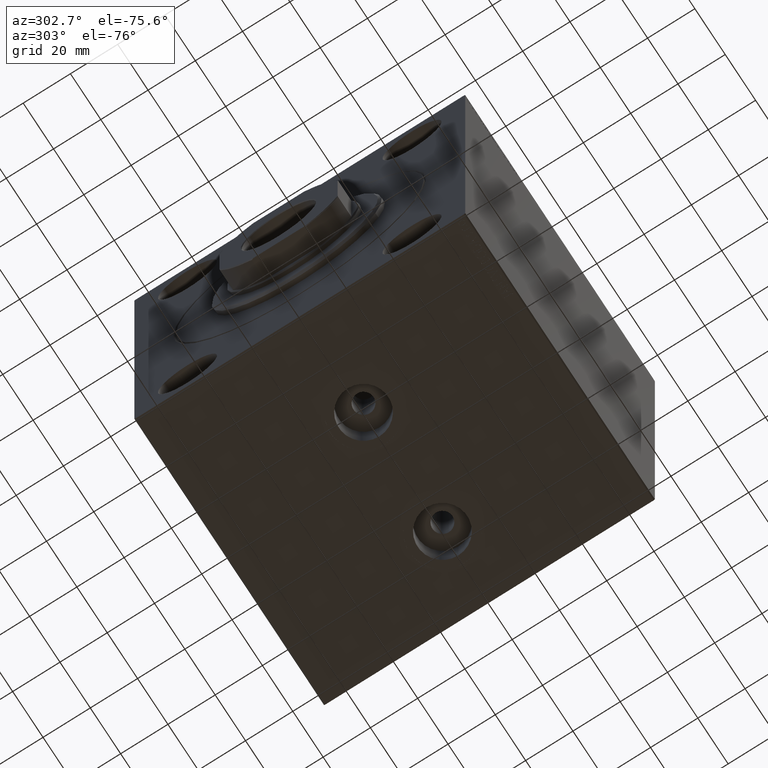
[diagram: clean part render]
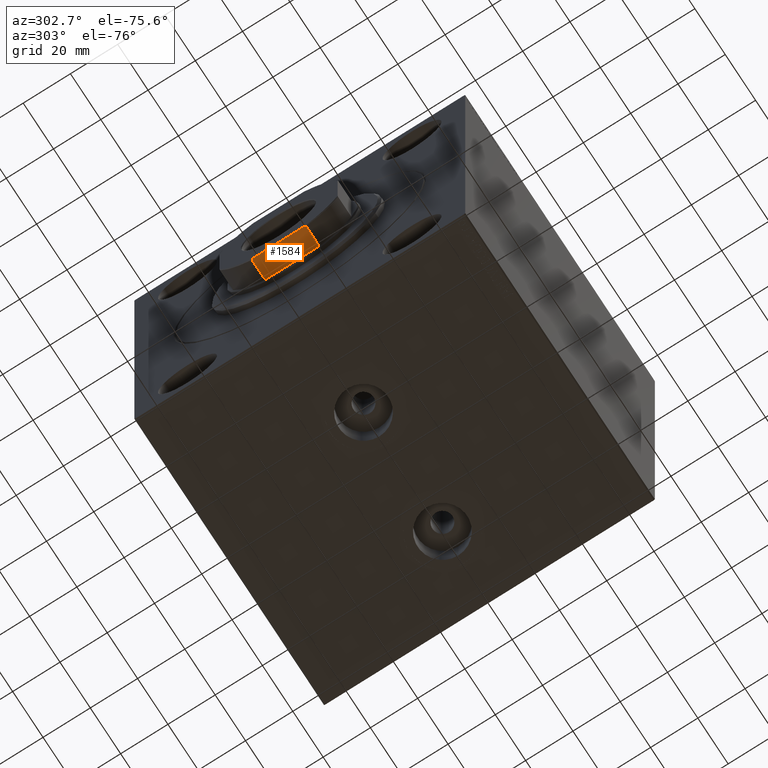
[diagram: same view with one face highlighted and labeled with its STEP entity id]
A machine part, auxiliary view. The second image highlights one B-rep face of the part: STEP entity #1584.
In plain terms, the highlighted planar face has unit normal (0, 0, 1).
Its self-contained STEP definition (entity closure, byte-faithful):
#1584 = ADVANCED_FACE ( 'NONE', ( #18318 ), #11416, .F. ) ;
#1937 = VECTOR ( 'NONE', #7106, 1000.000000000000000 ) ;
#2865 = CARTESIAN_POINT ( 'NONE',  ( -25.00000000000000000, -11.45643923738959558, -0.001000000000001000089 ) ) ;
#3346 = CARTESIAN_POINT ( 'NONE',  ( -24.99999999999999645, -10.71634265969507460, 64.99999999999998579 ) ) ;
#3613 = EDGE_CURVE ( 'NONE', #30370, #25159, #39963, .T. ) ;
#4506 = VECTOR ( 'NONE', #42685, 1000.000000000000000 ) ;
#5489 = CARTESIAN_POINT ( 'NONE',  ( -25.00000000000000000, 11.21071381544323664, 64.80236866784036920 ) ) ;
#7106 = DIRECTION ( 'NONE',  ( 2.081668171172168513E-16, -1.000000000000000000, 0.000000000000000000 ) ) ;
#7162 = AXIS2_PLACEMENT_3D ( 'NONE', #36097, #31893, #18536 ) ;
#7470 = CARTESIAN_POINT ( 'NONE',  ( -25.00000000000000000, -11.45643923738959558, 56.00000000000000000 ) ) ;
#8872 = EDGE_CURVE ( 'NONE', #25285, #41024, #27367, .T. ) ;
#9130 = CARTESIAN_POINT ( 'NONE',  ( -25.00000000000000355, 25.00000000000000000, 64.99999999999998579 ) ) ;
#10196 = LINE ( 'NONE', #2865, #32673 ) ;
#11416 = PLANE ( 'NONE',  #7162 ) ;
#12163 = CARTESIAN_POINT ( 'NONE',  ( -25.00000000000000000, 10.71634265969503730, 64.99999999999998579 ) ) ;
#12323 = ORIENTED_EDGE ( 'NONE', *, *, #37647, .F. ) ;
#13908 = CARTESIAN_POINT ( 'NONE',  ( -25.00000000000000000, -11.21071381544324730, 64.80236866784038341 ) ) ;
#14655 = CARTESIAN_POINT ( 'NONE',  ( -24.99999999999999645, 11.45643923738960623, 56.00000000000000000 ) ) ;
#14849 = CARTESIAN_POINT ( 'NONE',  ( -25.00000000000000000, 10.71634265969503730, 64.99999999999998579 ) ) ;
#15965 = ORIENTED_EDGE ( 'NONE', *, *, #20608, .T. ) ;
#16607 = ORIENTED_EDGE ( 'NONE', *, *, #35821, .F. ) ;
#17731 = VERTEX_POINT ( 'NONE', #14849 ) ;
#18318 = FACE_OUTER_BOUND ( 'NONE', #18592, .T. ) ;
#18536 = DIRECTION ( 'NONE',  ( -2.081668171172168267E-16, 1.000000000000000000, 0.000000000000000000 ) ) ;
#18592 = EDGE_LOOP ( 'NONE', ( #15965, #19478, #16607, #42104, #12323, #34073 ) ) ;
#18906 = LINE ( 'NONE', #9130, #4506 ) ;
#19057 = CARTESIAN_POINT ( 'NONE',  ( -24.99999999999999645, 11.45643923738960623, 64.69999999999997442 ) ) ;
#19478 = ORIENTED_EDGE ( 'NONE', *, *, #3613, .T. ) ;
#20608 = EDGE_CURVE ( 'NONE', #41024, #30370, #10196, .T. ) ;
#21457 = CARTESIAN_POINT ( 'NONE',  ( -24.99999999999999645, -10.71634265969507460, 64.99999999999998579 ) ) ;
#25057 = LINE ( 'NONE', #28615, #38659 ) ;
#25159 = VERTEX_POINT ( 'NONE', #3346 ) ;
#25285 = VERTEX_POINT ( 'NONE', #14655 ) ;
#27316 = CARTESIAN_POINT ( 'NONE',  ( -24.99999999999999645, 11.45643923738960623, 64.69999999999997442 ) ) ;
#27367 = LINE ( 'NONE', #30703, #1937 ) ;
#27720 = CARTESIAN_POINT ( 'NONE',  ( -24.99999999999999645, -10.96400998265873916, 64.90242323902617727 ) ) ;
#27857 = VERTEX_POINT ( 'NONE', #27316 ) ;
#28615 = CARTESIAN_POINT ( 'NONE',  ( -24.99999999999999645, 11.45643923738960623, -0.001000000000001000089 ) ) ;
#30370 = VERTEX_POINT ( 'NONE', #43803 ) ;
#30703 = CARTESIAN_POINT ( 'NONE',  ( -25.00000000000000355, 25.00000000000000000, 55.99999999999999289 ) ) ;
#31480 = CARTESIAN_POINT ( 'NONE',  ( -25.00000000000000000, -11.45643923738959558, 64.70000000000000284 ) ) ;
#31893 = DIRECTION ( 'NONE',  ( 1.000000000000000000, 2.081668171172168267E-16, -0.000000000000000000 ) ) ;
#32673 = VECTOR ( 'NONE', #33352, 1000.000000000000000 ) ;
#33003 = B_SPLINE_CURVE_WITH_KNOTS ( 'NONE', 3,
 ( #12163, #39283, #5489, #19057 ),
 .UNSPECIFIED., .F., .F.,
 ( 4, 4 ),
 ( 0.000000000000000000, 0.0007985880942733995574 ),
 .UNSPECIFIED. ) ;
#33352 = DIRECTION ( 'NONE',  ( -0.000000000000000000, -0.000000000000000000, 1.000000000000000000 ) ) ;
#34073 = ORIENTED_EDGE ( 'NONE', *, *, #8872, .T. ) ;
#35821 = EDGE_CURVE ( 'NONE', #17731, #25159, #18906, .T. ) ;
#36097 = CARTESIAN_POINT ( 'NONE',  ( -25.00000000000000355, 25.00000000000000000, 64.99999999999998579 ) ) ;
#37647 = EDGE_CURVE ( 'NONE', #25285, #27857, #25057, .T. ) ;
#38593 = DIRECTION ( 'NONE',  ( -0.000000000000000000, -0.000000000000000000, 1.000000000000000000 ) ) ;
#38659 = VECTOR ( 'NONE', #38593, 1000.000000000000000 ) ;
#39283 = CARTESIAN_POINT ( 'NONE',  ( -25.00000000000000000, 10.96400998265870896, 64.90242323902616306 ) ) ;
#39963 = B_SPLINE_CURVE_WITH_KNOTS ( 'NONE', 3,
 ( #31480, #13908, #27720, #21457 ),
 .UNSPECIFIED., .F., .F.,
 ( 4, 4 ),
 ( 0.000000000000000000, 0.0007985880942733425284 ),
 .UNSPECIFIED. ) ;
#40050 = EDGE_CURVE ( 'NONE', #17731, #27857, #33003, .T. ) ;
#41024 = VERTEX_POINT ( 'NONE', #7470 ) ;
#42104 = ORIENTED_EDGE ( 'NONE', *, *, #40050, .T. ) ;
#42685 = DIRECTION ( 'NONE',  ( 2.081668171172168513E-16, -1.000000000000000000, 0.000000000000000000 ) ) ;
#43803 = CARTESIAN_POINT ( 'NONE',  ( -25.00000000000000000, -11.45643923738959558, 64.70000000000000284 ) ) ;